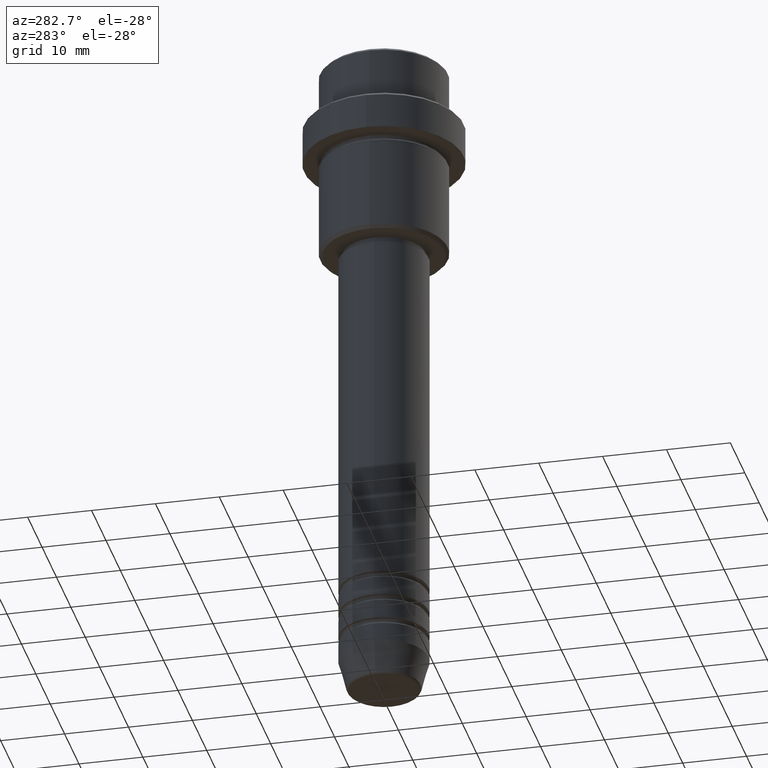
[diagram: clean part render]
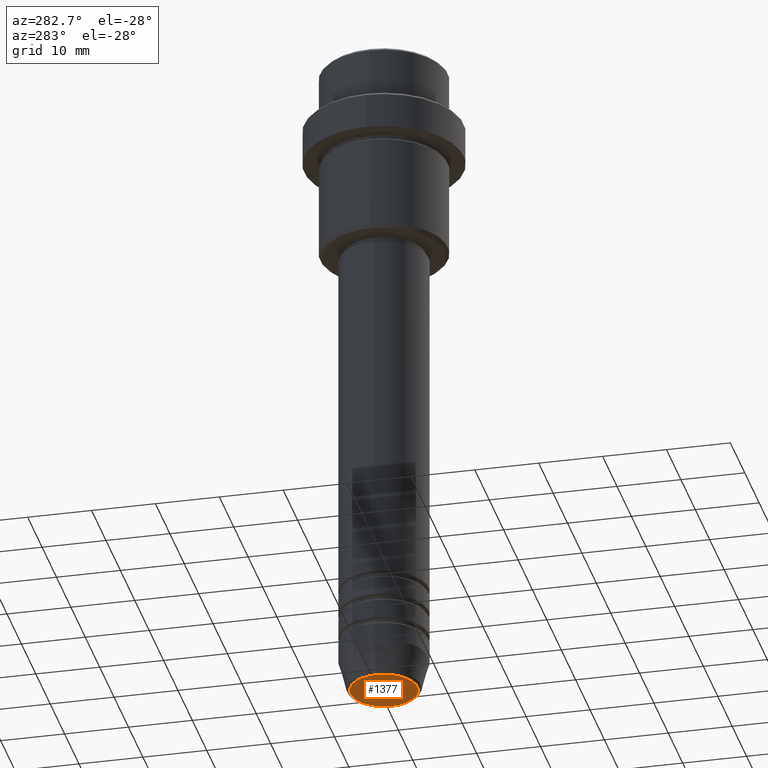
[diagram: same view with one face highlighted and labeled with its STEP entity id]
A machine part, auxiliary view. The second image highlights one B-rep face of the part: STEP entity #1377.
In plain terms, the highlighted planar face has unit normal (0, -0, 1).
Its self-contained STEP definition (entity closure, byte-faithful):
#45 = DIRECTION ( 'NONE',  ( 1.000000000000000000, 0.000000000000000000, 0.000000000000000000 ) ) ;
#74 = EDGE_LOOP ( 'NONE', ( #1160, #984 ) ) ;
#162 = CIRCLE ( 'NONE', #201, 5.276590543854905668 ) ;
#201 = AXIS2_PLACEMENT_3D ( 'NONE', #1248, #694, #45 ) ;
#293 = AXIS2_PLACEMENT_3D ( 'NONE', #817, #712, #418 ) ;
#418 = DIRECTION ( 'NONE',  ( 1.000000000000000000, 0.000000000000000000, 0.000000000000000000 ) ) ;
#421 = DIRECTION ( 'NONE',  ( 0.000000000000000000, 0.000000000000000000, -1.000000000000000000 ) ) ;
#428 = DIRECTION ( 'NONE',  ( 1.000000000000000000, 0.000000000000000000, 0.000000000000000000 ) ) ;
#448 = VERTEX_POINT ( 'NONE', #714 ) ;
#621 = CARTESIAN_POINT ( 'NONE',  ( 0.000000000000000000, 0.000000000000000000, -106.0000000000000000 ) ) ;
#694 = DIRECTION ( 'NONE',  ( 0.000000000000000000, 0.000000000000000000, -1.000000000000000000 ) ) ;
#712 = DIRECTION ( 'NONE',  ( 0.000000000000000000, -0.000000000000000000, 1.000000000000000000 ) ) ;
#714 = CARTESIAN_POINT ( 'NONE',  ( 5.276590543854905668, 0.000000000000000000, -106.0000000000000000 ) ) ;
#817 = CARTESIAN_POINT ( 'NONE',  ( 0.000000000000000000, 0.000000000000000000, -106.0000000000000000 ) ) ;
#838 = EDGE_CURVE ( 'NONE', #448, #1073, #162, .T. ) ;
#984 = ORIENTED_EDGE ( 'NONE', *, *, #1042, .T. ) ;
#1033 = CIRCLE ( 'NONE', #1212, 5.276590543854905668 ) ;
#1042 = EDGE_CURVE ( 'NONE', #1073, #448, #1033, .T. ) ;
#1073 = VERTEX_POINT ( 'NONE', #1201 ) ;
#1160 = ORIENTED_EDGE ( 'NONE', *, *, #838, .T. ) ;
#1183 = PLANE ( 'NONE',  #293 ) ;
#1201 = CARTESIAN_POINT ( 'NONE',  ( -5.276590543854905668, 6.757689212787768874E-16, -106.0000000000000000 ) ) ;
#1212 = AXIS2_PLACEMENT_3D ( 'NONE', #621, #421, #428 ) ;
#1248 = CARTESIAN_POINT ( 'NONE',  ( 0.000000000000000000, 0.000000000000000000, -106.0000000000000000 ) ) ;
#1358 = FACE_OUTER_BOUND ( 'NONE', #74, .T. ) ;
#1377 = ADVANCED_FACE ( 'NONE', ( #1358 ), #1183, .F. ) ;